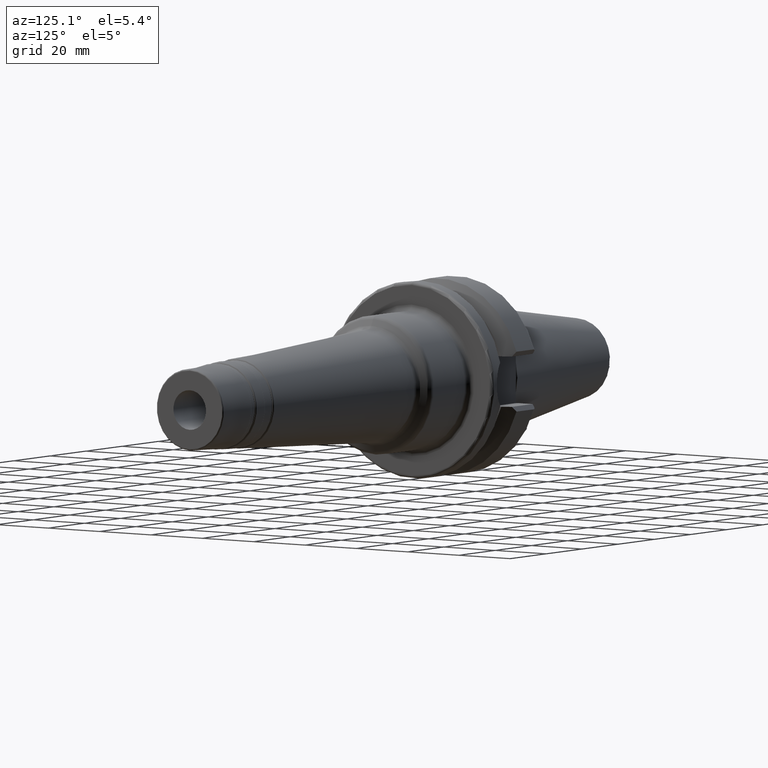
[diagram: clean part render]
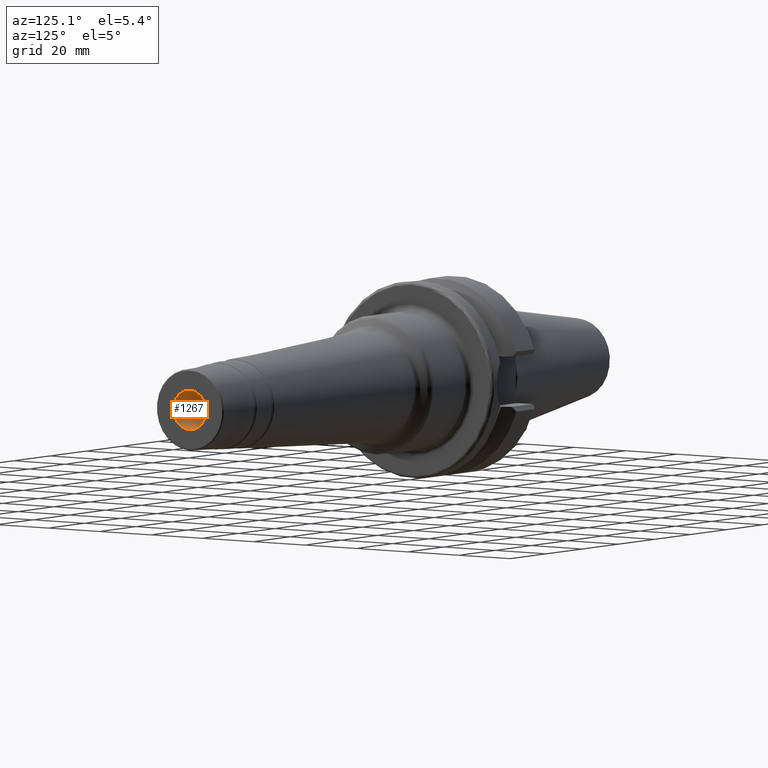
[diagram: same view with one face highlighted and labeled with its STEP entity id]
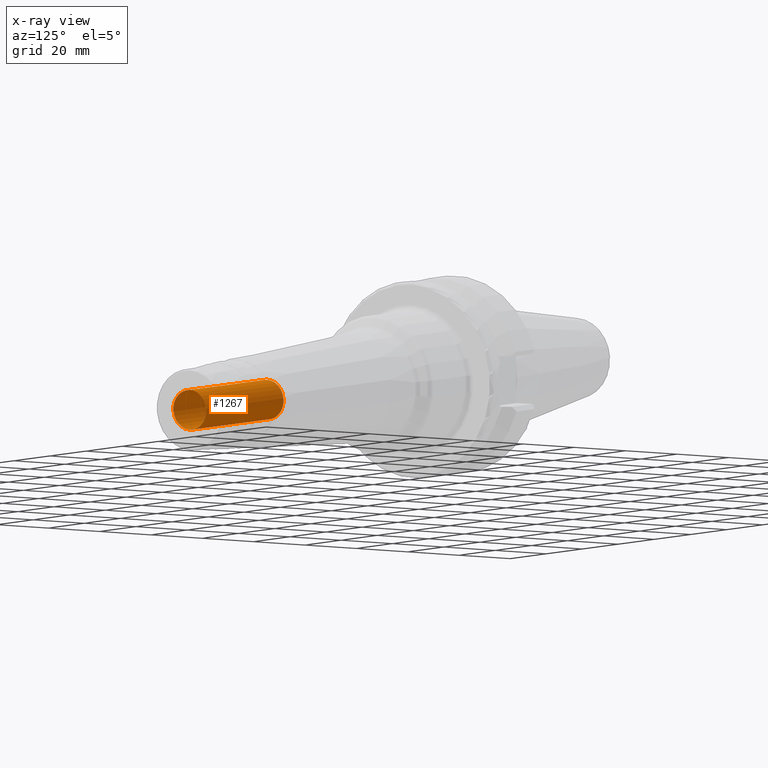
[diagram: x-ray of the same camera — body ghosted, the highlighted face saturated]
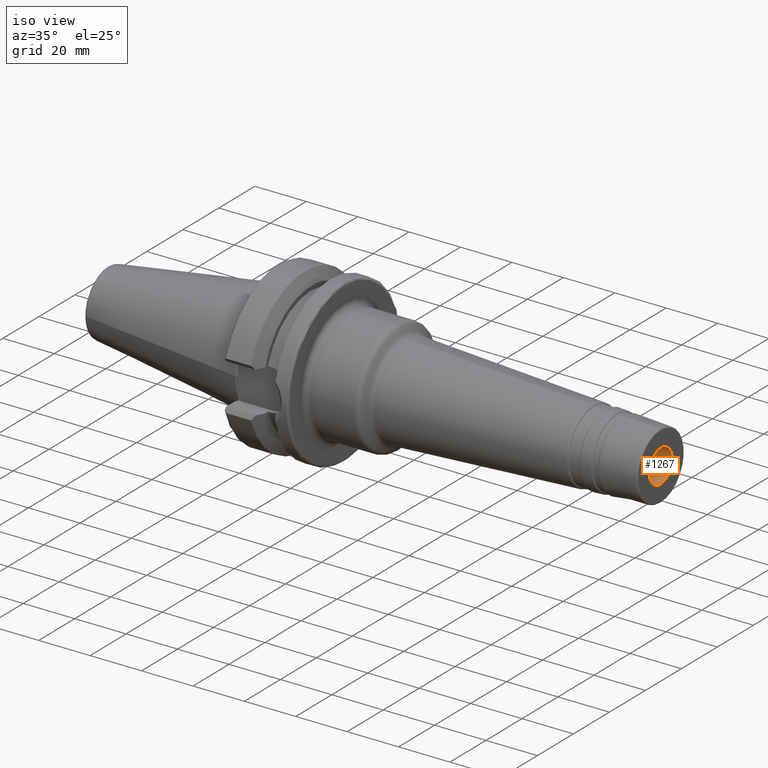
[diagram: same view with one face highlighted and labeled with its STEP entity id]
A machine part, auxiliary view. The second image highlights one B-rep face of the part: STEP entity #1267.
The next image is the same camera in x-ray: the body ghosted, the highlighted face saturated — about 0% of this face is hidden behind the body in this view.
A second angle (iso view) of the same face is appended — the face is thin or edge-on in the first view.
In plain terms, the highlighted cylindrical surface (bore or boss wall) has radius 6.35 mm, axis along (1, 0, 0).
Its self-contained STEP definition (entity closure, byte-faithful):
#53=CYLINDRICAL_SURFACE('',#1415,6.35);
#109=LINE('',#2050,#178);
#178=VECTOR('',#1676,6.35);
#283=FACE_OUTER_BOUND('',#367,.T.);
#367=EDGE_LOOP('',(#940,#941,#942,#943));
#451=CIRCLE('',#1390,6.35);
#467=CIRCLE('',#1416,6.35);
#535=VERTEX_POINT('',#2006);
#548=VERTEX_POINT('',#2049);
#673=EDGE_CURVE('',#535,#535,#451,.T.);
#693=EDGE_CURVE('',#535,#548,#109,.T.);
#694=EDGE_CURVE('',#548,#548,#467,.T.);
#940=ORIENTED_EDGE('',*,*,#673,.T.);
#941=ORIENTED_EDGE('',*,*,#693,.T.);
#942=ORIENTED_EDGE('',*,*,#694,.F.);
#943=ORIENTED_EDGE('',*,*,#693,.F.);
#1267=ADVANCED_FACE('',(#283),#53,.F.);
#1390=AXIS2_PLACEMENT_3D('',#2007,#1620,#1621);
#1415=AXIS2_PLACEMENT_3D('',#2048,#1674,#1675);
#1416=AXIS2_PLACEMENT_3D('',#2051,#1677,#1678);
#1620=DIRECTION('center_axis',(1.,0.,0.));
#1621=DIRECTION('ref_axis',(0.,0.,-1.));
#1674=DIRECTION('center_axis',(1.,0.,0.));
#1675=DIRECTION('ref_axis',(0.,0.,-1.));
#1676=DIRECTION('',(-1.,0.,0.));
#1677=DIRECTION('center_axis',(1.,0.,0.));
#1678=DIRECTION('ref_axis',(0.,0.,-1.));
#2006=CARTESIAN_POINT('',(150.,-7.77650717458569E-16,6.35));
#2007=CARTESIAN_POINT('Origin',(150.,0.,0.));
#2048=CARTESIAN_POINT('Origin',(128.5,0.,0.));
#2049=CARTESIAN_POINT('',(107.,-7.77650717458569E-16,6.35));
#2050=CARTESIAN_POINT('',(128.5,-7.77650717458569E-16,6.35));
#2051=CARTESIAN_POINT('Origin',(107.,0.,0.));